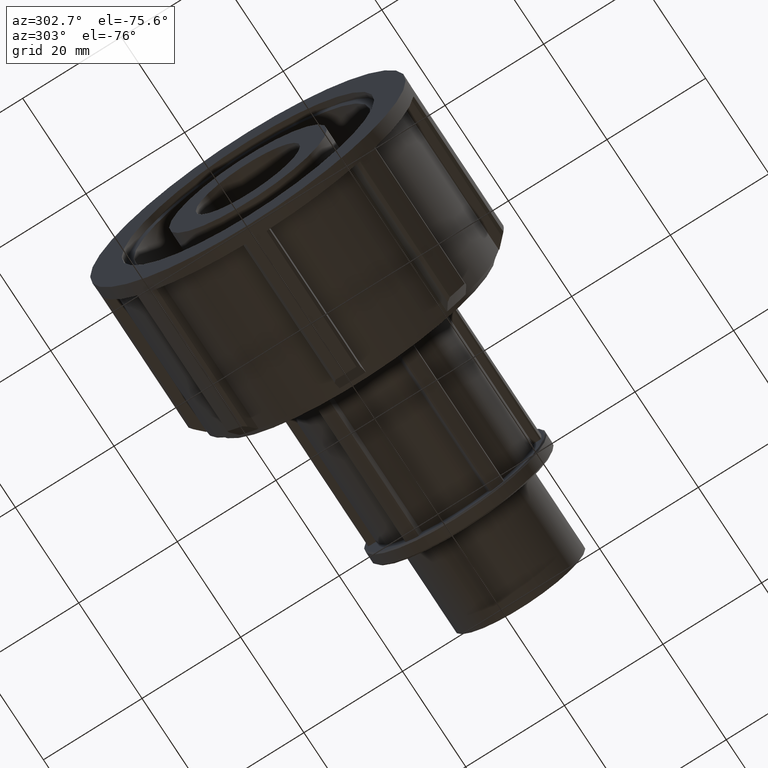
[diagram: clean part render]
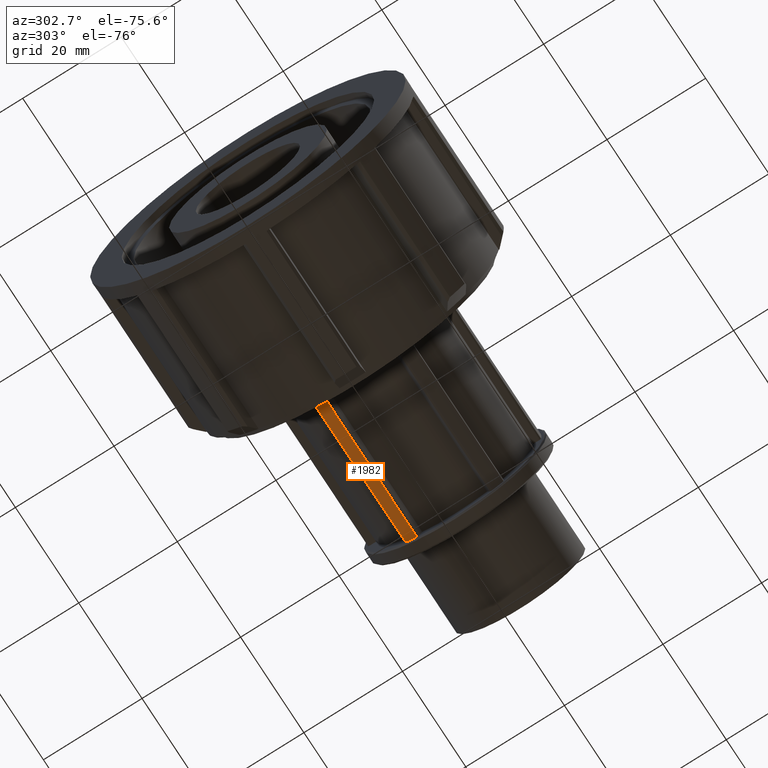
[diagram: same view with one face highlighted and labeled with its STEP entity id]
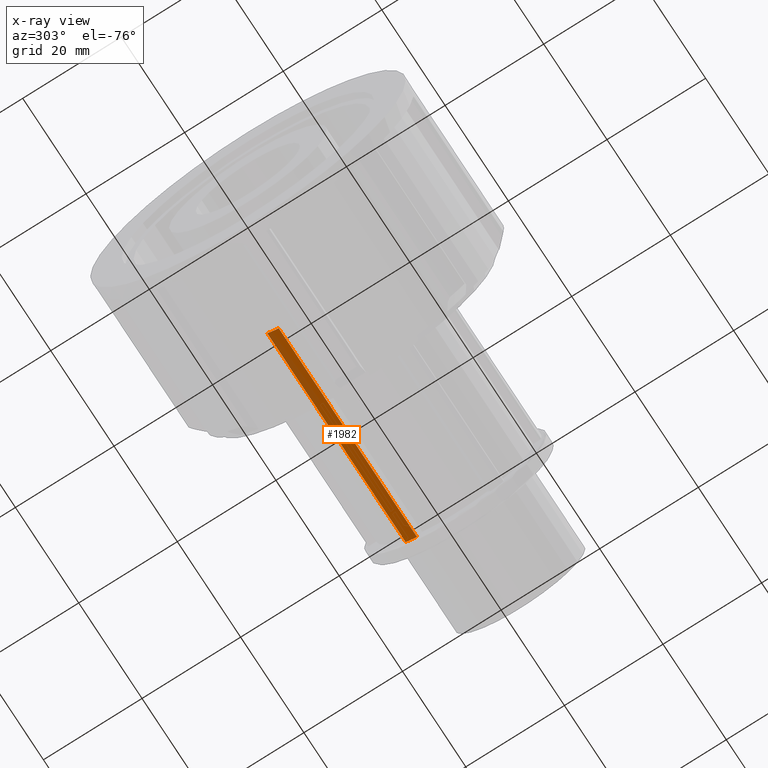
[diagram: x-ray of the same camera — body ghosted, the highlighted face saturated]
A machine part, auxiliary view. The second image highlights one B-rep face of the part: STEP entity #1982.
The next image is the same camera in x-ray: the body ghosted, the highlighted face saturated — about 15% of this face is hidden behind the body in this view.
In plain terms, the highlighted cylindrical surface (partial cylindrical patch) has radius 17.6 mm, axis along (-1, 0, 0).
Its self-contained STEP definition (entity closure, byte-faithful):
#81=CIRCLE('',#2100,17.6);
#82=CIRCLE('',#2101,17.6);
#166=CYLINDRICAL_SURFACE('',#2099,17.6);
#199=FACE_OUTER_BOUND('',#314,.T.);
#314=EDGE_LOOP('',(#1323,#1324,#1325,#1326));
#452=LINE('',#2887,#632);
#457=LINE('',#2899,#637);
#632=VECTOR('',#2303,43.7);
#637=VECTOR('',#2312,43.7);
#809=VERTEX_POINT('',#2880);
#812=VERTEX_POINT('',#2885);
#816=VERTEX_POINT('',#2896);
#817=VERTEX_POINT('',#2898);
#1017=EDGE_CURVE('',#812,#809,#452,.T.);
#1022=EDGE_CURVE('',#816,#817,#457,.T.);
#1025=EDGE_CURVE('',#817,#812,#81,.T.);
#1026=EDGE_CURVE('',#809,#816,#82,.T.);
#1323=ORIENTED_EDGE('',*,*,#1017,.F.);
#1324=ORIENTED_EDGE('',*,*,#1025,.F.);
#1325=ORIENTED_EDGE('',*,*,#1022,.F.);
#1326=ORIENTED_EDGE('',*,*,#1026,.F.);
#1982=ADVANCED_FACE('',(#199),#166,.T.);
#2099=AXIS2_PLACEMENT_3D('',#2903,#2315,#2316);
#2100=AXIS2_PLACEMENT_3D('',#2904,#2317,#2318);
#2101=AXIS2_PLACEMENT_3D('',#2905,#2319,#2320);
#2303=DIRECTION('',(1.,0.,0.));
#2312=DIRECTION('',(-1.,0.,0.));
#2315=DIRECTION('center_axis',(-1.,0.,0.));
#2316=DIRECTION('ref_axis',(0.,0.866025403784439,0.499999999999999));
#2317=DIRECTION('center_axis',(-1.,0.,0.));
#2318=DIRECTION('ref_axis',(0.,0.866025403784439,0.499999999999999));
#2319=DIRECTION('center_axis',(1.,0.,0.));
#2320=DIRECTION('ref_axis',(0.,0.866025403784439,0.499999999999999));
#2880=CARTESIAN_POINT('',(65.3,7.61713713328467,-15.8662920020002));
#2885=CARTESIAN_POINT('',(21.6,7.61713713328467,-15.8662920020002));
#2887=CARTESIAN_POINT('',(65.3,7.61713713328467,-15.8662920020002));
#2896=CARTESIAN_POINT('',(65.3,9.93204337095168,-14.5297802625344));
#2898=CARTESIAN_POINT('',(21.6,9.93204337095168,-14.5297802625344));
#2899=CARTESIAN_POINT('',(65.3,9.93204337095168,-14.5297802625344));
#2903=CARTESIAN_POINT('Origin',(65.3,0.,0.));
#2904=CARTESIAN_POINT('Origin',(21.6,0.,0.));
#2905=CARTESIAN_POINT('Origin',(65.3,0.,0.));